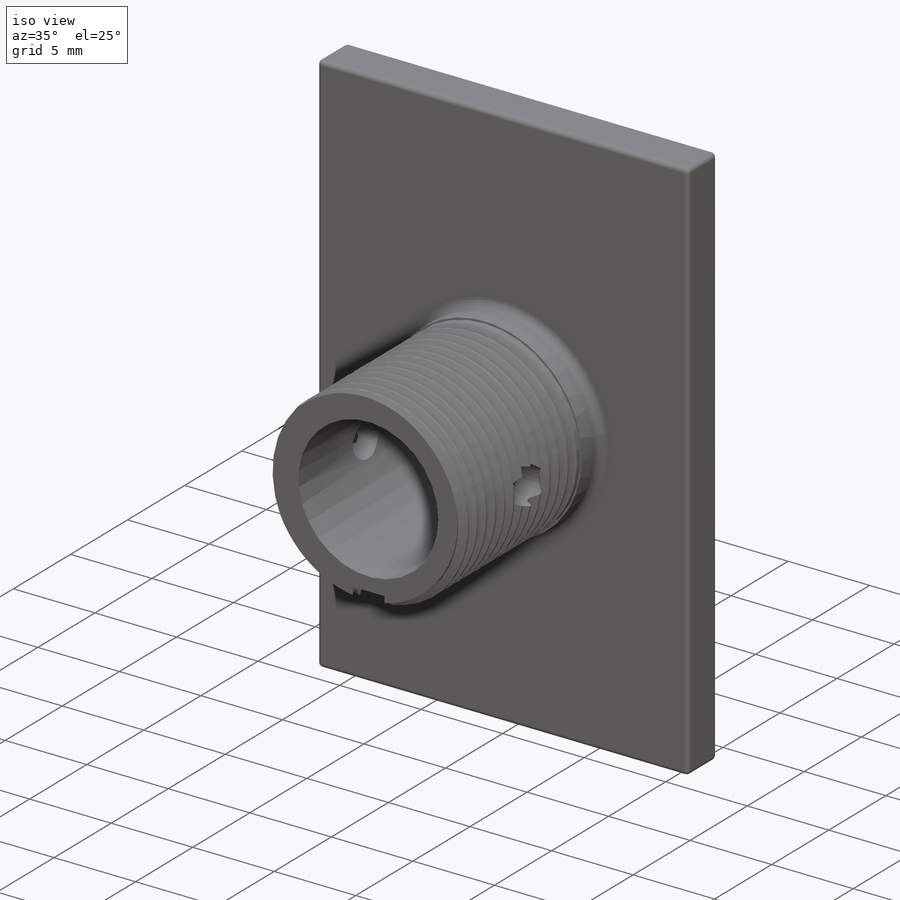
[diagram: iso view]
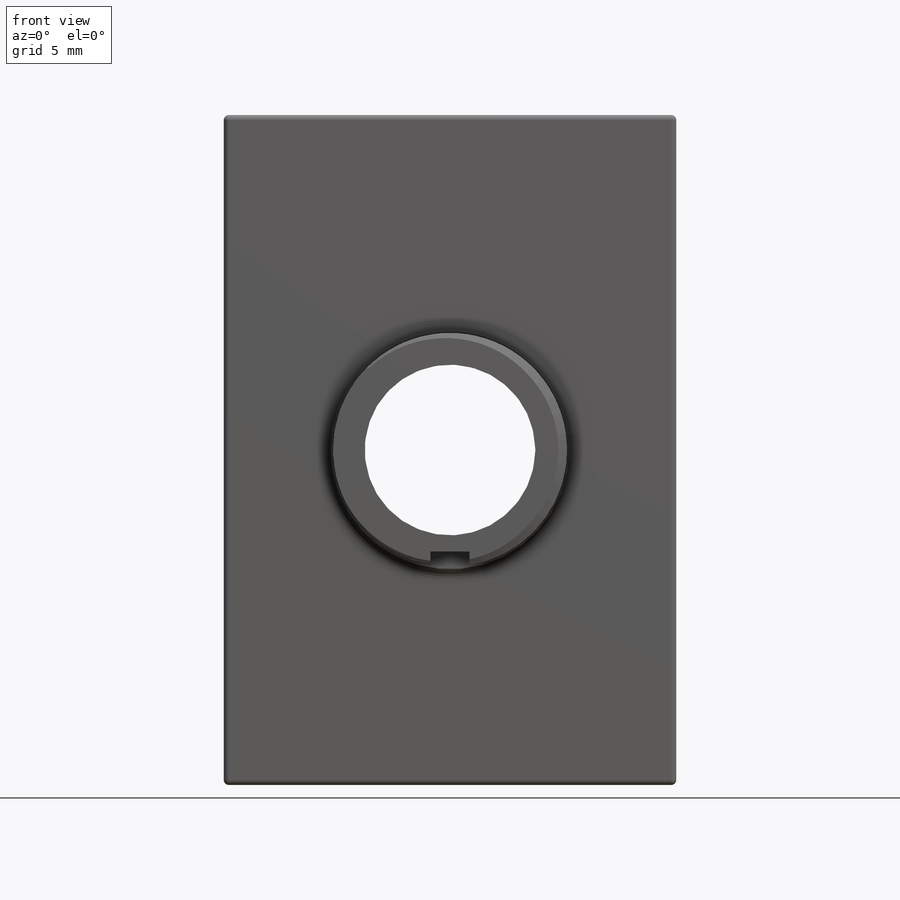
[diagram: front view]
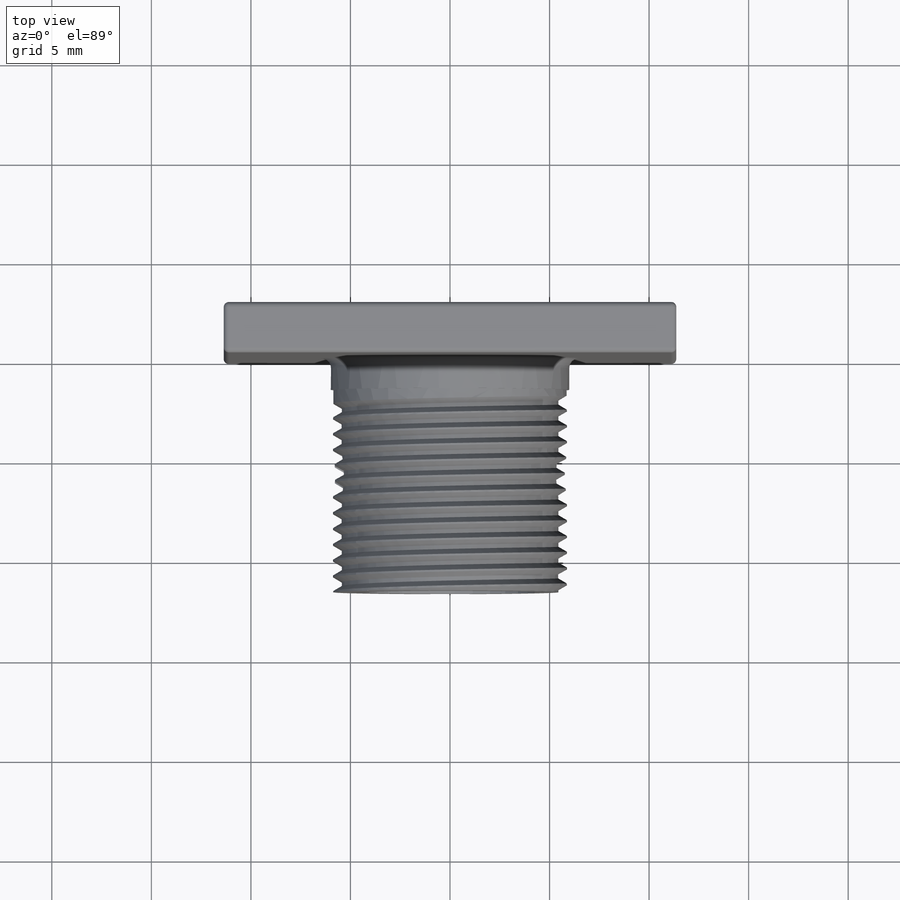
[diagram: top view]
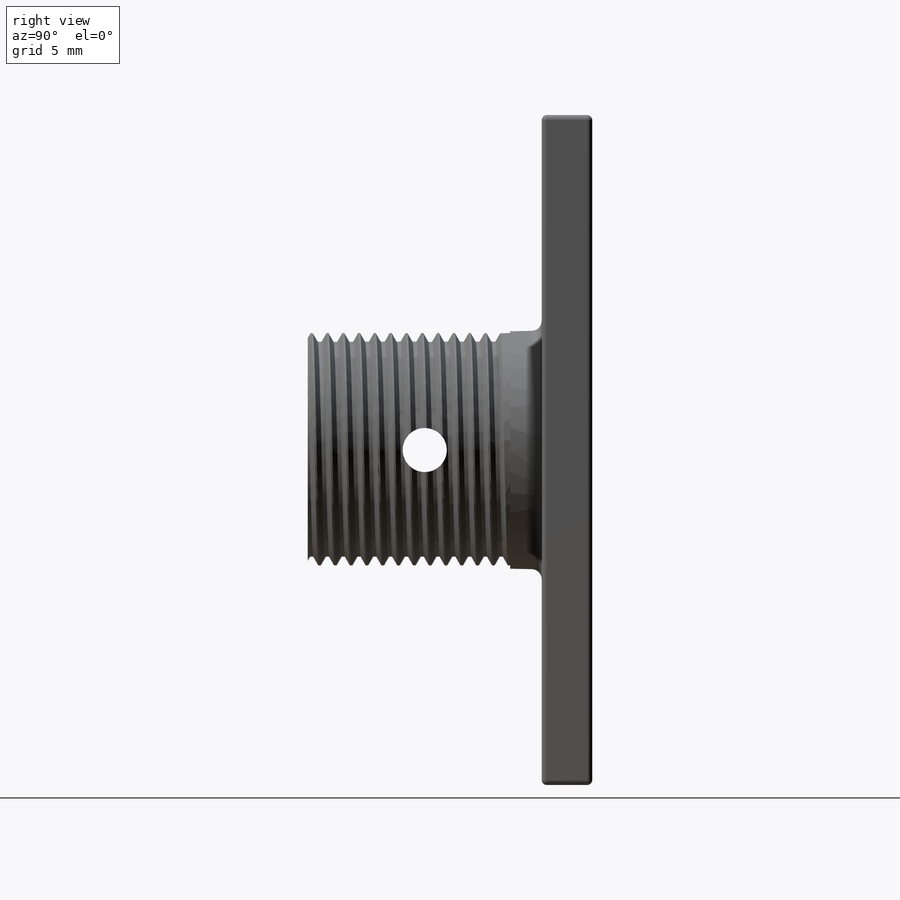
[diagram: right view]
SOLIDWORKS PART (.sldprt)
format: sldprt  version: not decoded by parser v0  size: 773,120 bytes
history: native  units: mm
features: sketch x8, extrude x3, cut_extrude x3, fillet x2, material x1, helix x1, sweep x1 (+16 scaffold rows collapsed)
feature tree (35):
  scaffold x16  (default folders/planes/origin — collapsed)
  material  "Stainless Steel (ferritic)"
  sketch  "Sketch1"  dims[D1=~11.75258mm D2=1.5875mm]
  extrude  "Extrude1"  Depth=11.75258mm
  sketch  "Sketch2"  dims[D1=11.9761mm]
  extrude  "Extrude2"  Depth=1.5875mm
  sketch  "Sketch4"
  helix  "Helix/Spiral1"  Pitch=10.120312mm
  sketch  "Sketch6"  dims[D1=33.655mm D2=22.733mm]
  extrude  "Extrude4"  Depth=2.54mm
  sketch  "Sketch5"  dims[D1=1.5875mm]
  cut_extrude  "Extrude3"  [1 undecoded]
  sketch  "Sketch8"  dims[D3=0.762mm D1=0.9779mm D2=0.9779mm]
  sketch  "Sketch3"  dims[c1.D1=~0.396875mm c1.D2=~0.371475mm c2.D2=60.0deg c2.D3=~0.198437mm c2.D4=60.0deg]
  sweep  "Cut-Sweep3"
  cut_extrude  "Extrude5"  [1 undecoded]
  fillet  "Fillet1"  Radius=0.508mm
  fillet  "Fillet2"  Radius=0.254mm
  sketch  "Sketch9"  dims[D1=2.2225mm]
  cut_extrude  "Extrude6"  [1 undecoded]
decode coverage: 13 of 18 modeling features carry decoded parameters
note: ~ marks probable driven/reference dimensions
note: 3 parameter values undecoded
summary: no parameter record found for 3 features
note: suppression state not decoded; provenance and decode notes live in map.json
